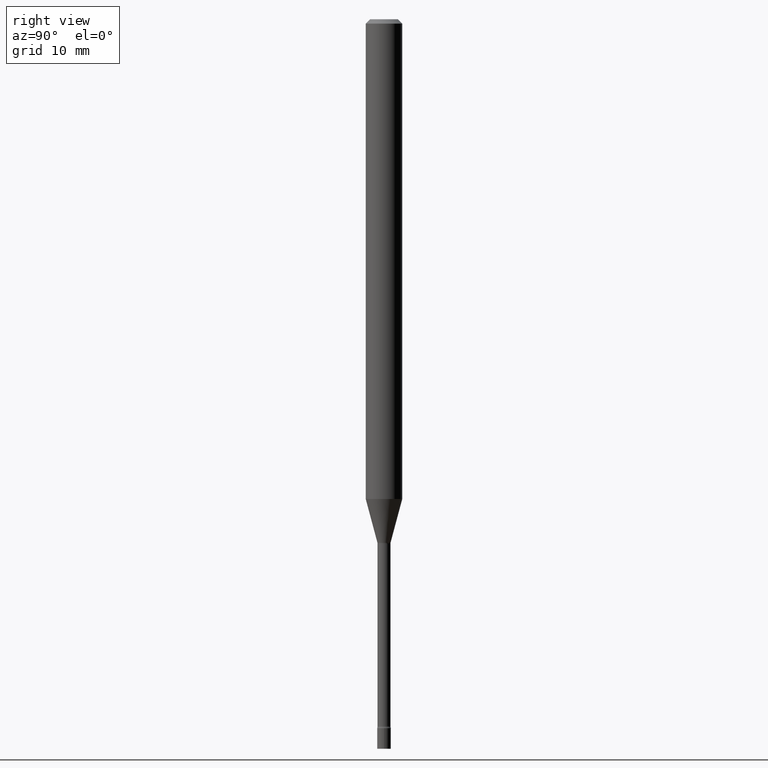
[diagram: clean part render]
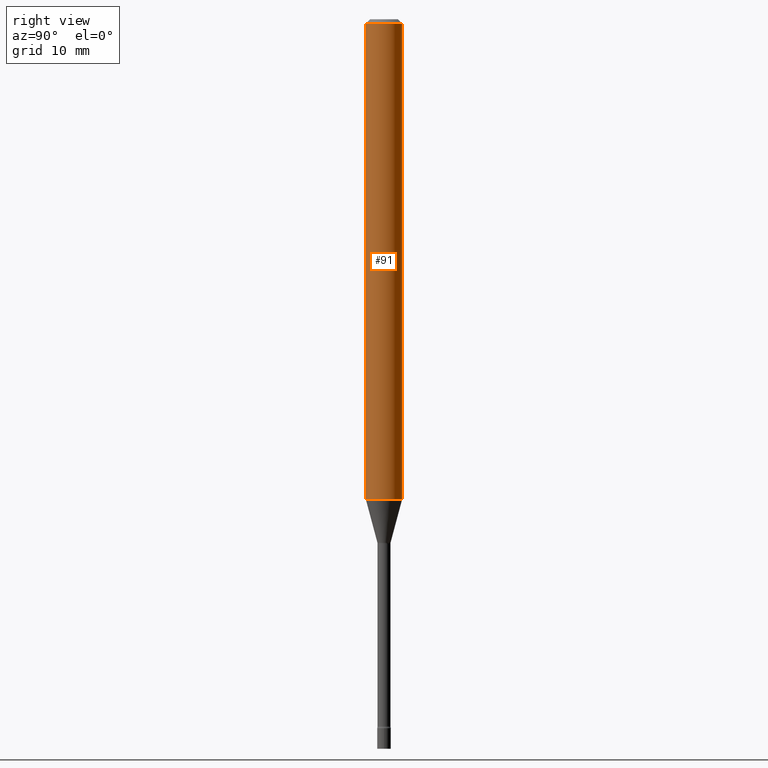
[diagram: same view with one face highlighted and labeled with its STEP entity id]
A machine part, right view. The second image highlights one B-rep face of the part: STEP entity #91.
In plain terms, the highlighted cylindrical surface (edge-blend (fillet) strip) has radius 1.5875 mm, axis along (-0, 0, 1).
Its self-contained STEP definition (entity closure, byte-faithful):
#4 = DIRECTION ( 'NONE',  ( -6.982962677686265922E-15, -1.000000000000000000, 4.370956789862821150E-15 ) ) ;
#19 = ORIENTED_EDGE ( 'NONE', *, *, #440, .F. ) ;
#58 = EDGE_CURVE ( 'NONE', #378, #96, #504, .T. ) ;
#81 = CARTESIAN_POINT ( 'NONE',  ( 4.440892098500625669E-16, 0.06250000000000000000, -2.182183839755797990E-16 ) ) ;
#86 = CARTESIAN_POINT ( 'NONE',  ( -4.364351673553916201E-16, -0.06250000000000000000, 2.182183839755797990E-16 ) ) ;
#90 = ORIENTED_EDGE ( 'NONE', *, *, #134, .T. ) ;
#91 = ADVANCED_FACE ( 'NONE', ( #195 ), #485, .T. ) ;
#96 = VERTEX_POINT ( 'NONE', #236 ) ;
#99 = VERTEX_POINT ( 'NONE', #396 ) ;
#120 = AXIS2_PLACEMENT_3D ( 'NONE', #245, #200, #4 ) ;
#131 = EDGE_CURVE ( 'NONE', #510, #96, #443, .T. ) ;
#134 = EDGE_CURVE ( 'NONE', #99, #510, #241, .T. ) ;
#185 = EDGE_LOOP ( 'NONE', ( #90, #223, #474, #19 ) ) ;
#195 = FACE_OUTER_BOUND ( 'NONE', #185, .T. ) ;
#200 = DIRECTION ( 'NONE',  ( -2.445459864664737566E-29, 3.491494143609276784E-15, 1.000000000000000000 ) ) ;
#205 = CARTESIAN_POINT ( 'NONE',  ( 0.000000000000000000, 0.000000000000000000, 0.000000000000000000 ) ) ;
#223 = ORIENTED_EDGE ( 'NONE', *, *, #131, .T. ) ;
#225 = VECTOR ( 'NONE', #489, 39.37007874015748143 ) ;
#236 = CARTESIAN_POINT ( 'NONE',  ( 4.440892098501030453E-16, 0.06249999999999995143, -0.01500000000000024751 ) ) ;
#240 = DIRECTION ( 'NONE',  ( -2.445459864664737566E-29, 3.491494143609276784E-15, 1.000000000000000000 ) ) ;
#241 = CIRCLE ( 'NONE', #120, 0.06250000000000000000 ) ;
#245 = CARTESIAN_POINT ( 'NONE',  ( 4.020886606376113285E-29, -5.740802472832181902E-15, -1.644225147374217988 ) ) ;
#254 = DIRECTION ( 'NONE',  ( -2.445459864664737566E-29, 3.491494143609276390E-15, 1.000000000000000000 ) ) ;
#270 = CARTESIAN_POINT ( 'NONE',  ( -4.364351673553912750E-16, -0.06250000000000005551, -0.01499999999999981209 ) ) ;
#324 = DIRECTION ( 'NONE',  ( -2.445459864664737566E-29, 3.491494143609276784E-15, 1.000000000000000000 ) ) ;
#357 = CARTESIAN_POINT ( 'NONE',  ( 3.668189796997113601E-31, -5.237241215413926147E-17, -0.01500000000000003067 ) ) ;
#364 = LINE ( 'NONE', #86, #452 ) ;
#378 = VERTEX_POINT ( 'NONE', #270 ) ;
#390 = AXIS2_PLACEMENT_3D ( 'NONE', #205, #240, #487 ) ;
#396 = CARTESIAN_POINT ( 'NONE',  ( -4.364351673553515854E-16, -0.06250000000000575928, -1.644225147374217544 ) ) ;
#425 = CARTESIAN_POINT ( 'NONE',  ( 4.440892098501025523E-16, 0.06249999999999423378, -1.644225147374218210 ) ) ;
#440 = EDGE_CURVE ( 'NONE', #99, #378, #364, .T. ) ;
#443 = LINE ( 'NONE', #81, #225 ) ;
#452 = VECTOR ( 'NONE', #254, 39.37007874015748143 ) ;
#471 = AXIS2_PLACEMENT_3D ( 'NONE', #357, #324, #518 ) ;
#474 = ORIENTED_EDGE ( 'NONE', *, *, #58, .F. ) ;
#485 = CYLINDRICAL_SURFACE ( 'NONE', #390, 0.06250000000000000000 ) ;
#487 = DIRECTION ( 'NONE',  ( -6.982962677686265922E-15, -1.000000000000000000, 3.491494143609276784E-15 ) ) ;
#489 = DIRECTION ( 'NONE',  ( -2.445459864664737566E-29, 3.491494143609276390E-15, 1.000000000000000000 ) ) ;
#504 = CIRCLE ( 'NONE', #471, 0.06250000000000000000 ) ;
#510 = VERTEX_POINT ( 'NONE', #425 ) ;
#518 = DIRECTION ( 'NONE',  ( -6.982962677686265922E-15, -1.000000000000000000, 3.483106191921935554E-15 ) ) ;